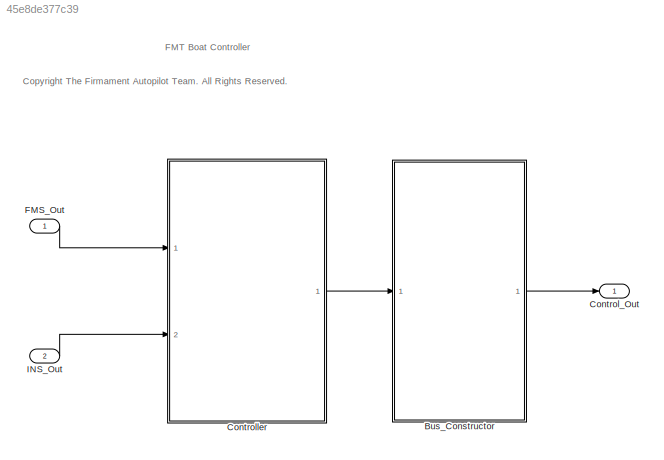
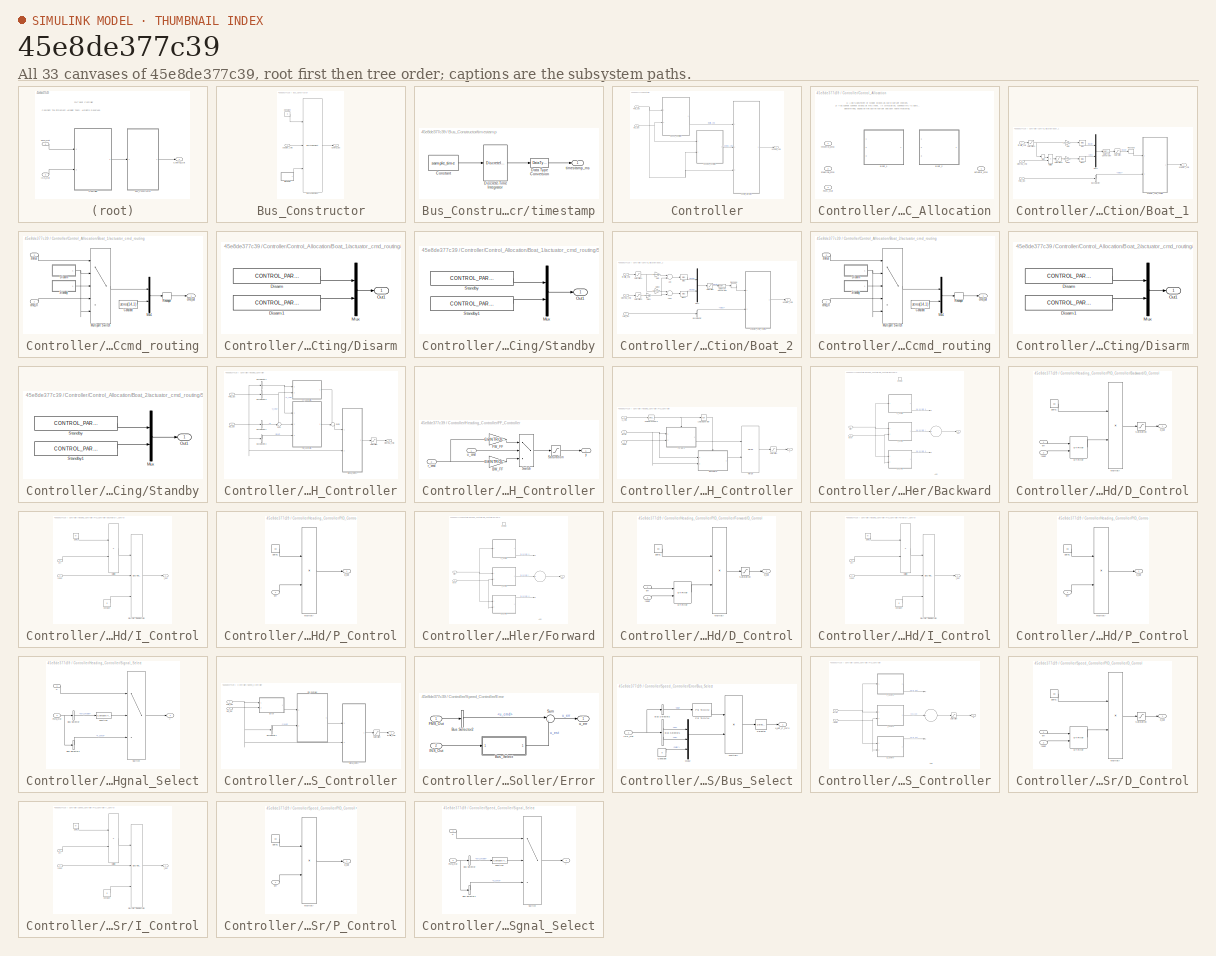
[diagram: thumbnail index - all 33 canvases of the model, root first then tree order]
MODEL slx_45e8de377c39
KIND model
CONFIG AbsTol = auto
CONFIG EnableMultiTasking = off
CONFIG FixedStep = control_dt
CONFIG MaxStep = auto
CONFIG MinStep = auto
CONFIG RelTol = 1e-3
CONFIG SampleTimeConstraint = Unconstrained
CONFIG Solver = FixedStepDiscrete
CONFIG SolverName = FixedStepDiscrete
CONFIG StartTime = 0.0
CONFIG StopTime = 10.0
BLOCK [SubSystem] Bus_Constructor
  Ports = [1, 1]
  RequestExecContextInheritance = off
BLOCK [BusAssignment] Bus_Constructor/Bus Assignment
  AssignedSignals = actuator_cmd,timestamp
  Ports = [3, 1]
BLOCK [Constant] Bus_Constructor/Constant
  OutDataTypeStr = Bus: Control_Out_Bus
  Value = 0
BLOCK [Outport] Bus_Constructor/Control_Out
  IconDisplay = Port number
BLOCK [Inport] Bus_Constructor/actuator_cmd
  IconDisplay = Port number
BLOCK [SubSystem] Bus_Constructor/timestamp
  Ports = [0, 1]
  RequestExecContextInheritance = off
BLOCK [Constant] Bus_Constructor/timestamp/Constant
  Value = sample_time
BLOCK [DataTypeConversion] Bus_Constructor/timestamp/Data Type Conversion
  OutDataTypeStr = uint32
  RndMeth = Floor
  SaturateOnIntegerOverflow = off
BLOCK [DiscreteIntegrator] Bus_Constructor/timestamp/Discrete-Time Integrator
  ICPrevOutput = DiscIntNeverNeededParam
  ICPrevScaledInput = DiscIntNeverNeededParam
  InitialConditionSetting = Auto
  IntegratorMethod = Accumulation: Forward Euler
  Ports = [1, 1]
  SampleTime = -1
BLOCK [Outport] Bus_Constructor/timestamp/timestamp_ms
  IconDisplay = Port number
BLOCK [Outport] Control_Out
  IconDisplay = Port number
  OutDataTypeStr = Bus: Control_Out_Bus
BLOCK [SubSystem] Controller
  Ports = [2, 1]
  RequestExecContextInheritance = off
BLOCK [SubSystem] Controller/Control_Allocation
  GeneratePreprocessorConditionals = on
  Ports = [3, 1]
  RequestExecContextInheritance = off
  Variant = on
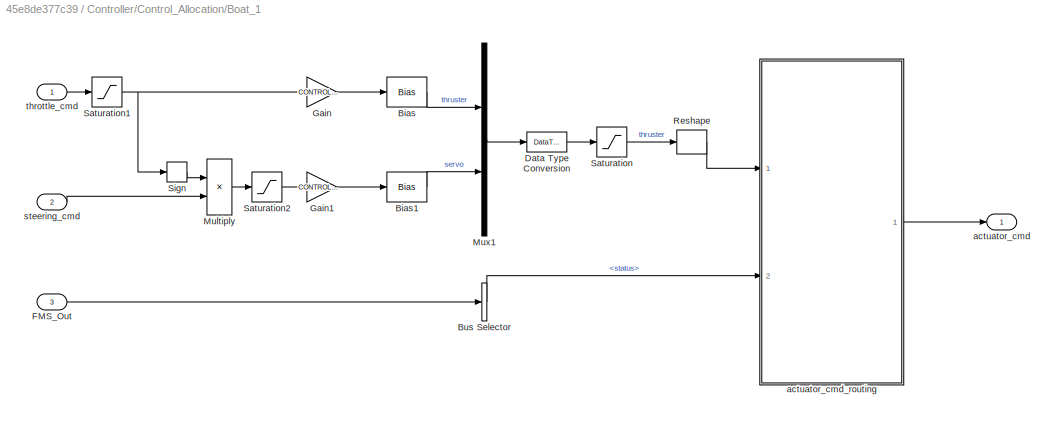
BLOCK [SubSystem] Controller/Control_Allocation/Boat_1
  Ports = [3, 1]
  RequestExecContextInheritance = off
  TreatAsAtomicUnit = on
  VariantControl = AIRFRAME==1
BLOCK [Bias] Controller/Control_Allocation/Boat_1/Bias
  Bias = CONTROL_PARAM.THROTTLE_BIAS
  SaturateOnIntegerOverflow = off
BLOCK [Bias] Controller/Control_Allocation/Boat_1/Bias1
  Bias = CONTROL_PARAM.SERVO_BIAS
  SaturateOnIntegerOverflow = off
BLOCK [BusSelector] Controller/Control_Allocation/Boat_1/Bus Selector
  OutputAsBus = off
  OutputSignals = status
  Ports = [1, 1]
BLOCK [DataTypeConversion] Controller/Control_Allocation/Boat_1/Data Type Conversion
  OutDataTypeStr = uint16
  RndMeth = Floor
  SaturateOnIntegerOverflow = off
BLOCK [Inport] Controller/Control_Allocation/Boat_1/FMS_Out
  IconDisplay = Port number
  Port = 3
BLOCK [Gain] Controller/Control_Allocation/Boat_1/Gain
  Gain = CONTROL_PARAM.THROTTLE_SCALE
  OutDataTypeStr = single
  ParamDataTypeStr = Inherit: Inherit via internal rule
  SaturateOnIntegerOverflow = off
BLOCK [Gain] Controller/Control_Allocation/Boat_1/Gain1
  Gain = CONTROL_PARAM.SERVO_SCALE
  OutDataTypeStr = single
  ParamDataTypeStr = Inherit: Inherit via internal rule
  SaturateOnIntegerOverflow = off
BLOCK [Product] Controller/Control_Allocation/Boat_1/Multiply
  InputSameDT = off
  OutDataTypeStr = Inherit: Inherit via internal rule
  Ports = [2, 1]
  RndMeth = Floor
  SaturateOnIntegerOverflow = off
BLOCK [Mux] Controller/Control_Allocation/Boat_1/Mux1
  DisplayOption = bar
  Inputs = 2
  Ports = [2, 1]
BLOCK [Reshape] Controller/Control_Allocation/Boat_1/Reshape
  OutputDimensionality = Column vector (2-D)
  Ports = [1, 1]
BLOCK [Saturate] Controller/Control_Allocation/Boat_1/Saturation
  InputPortMap = u0
  LowerLimit = 1000
  Ports = [1, 1]
  UpperLimit = 2000
BLOCK [Saturate] Controller/Control_Allocation/Boat_1/Saturation1
  InputPortMap = u0
  LowerLimit = CONTROL_PARAM.THROTTLE_MIN
  Ports = [1, 1]
  UpperLimit = CONTROL_PARAM.THROTTLE_MAX
BLOCK [Saturate] Controller/Control_Allocation/Boat_1/Saturation2
  InputPortMap = u0
  LowerLimit = CONTROL_PARAM.SERVO_MIN
  Ports = [1, 1]
  UpperLimit = CONTROL_PARAM.SERVO_MAX
BLOCK [Signum] Controller/Control_Allocation/Boat_1/Sign
BLOCK [Outport] Controller/Control_Allocation/Boat_1/actuator_cmd
  IconDisplay = Port number
BLOCK [SubSystem] Controller/Control_Allocation/Boat_1/actuator_cmd_routing
  Ports = [2, 1]
  RequestExecContextInheritance = off
BLOCK [Constant] Controller/Control_Allocation/Boat_1/actuator_cmd_routing/Constant
  OutDataTypeStr = uint16
  Value = zeros(14,1)
  VectorParams1D = off
BLOCK [SubSystem] Controller/Control_Allocation/Boat_1/actuator_cmd_routing/Disarm
  Ports = [0, 1]
  RequestExecContextInheritance = off
BLOCK [Constant] Controller/Control_Allocation/Boat_1/actuator_cmd_routing/Disarm/Disarm
  OutDataTypeStr = uint16
  Value = CONTROL_PARAM.THROTTLE_BIAS
  VectorParams1D = off
BLOCK [Constant] Controller/Control_Allocation/Boat_1/actuator_cmd_routing/Disarm/Disarm1
  OutDataTypeStr = uint16
  Value = CONTROL_PARAM.SERVO_BIAS
  VectorParams1D = off
BLOCK [Mux] Controller/Control_Allocation/Boat_1/actuator_cmd_routing/Disarm/Mux
  DisplayOption = bar
  Inputs = 2
  Ports = [2, 1]
BLOCK [Outport] Controller/Control_Allocation/Boat_1/actuator_cmd_routing/Disarm/Out1
  IconDisplay = Port number
BLOCK [MultiPortSwitch] Controller/Control_Allocation/Boat_1/actuator_cmd_routing/Multiport Switch
  DataPortForDefault = Additional data port
  DiagnosticForDefault = None
  InputSameDT = off
  Ports = [5, 1]
  SaturateOnIntegerOverflow = off
BLOCK [Mux] Controller/Control_Allocation/Boat_1/actuator_cmd_routing/Mux1
  DisplayOption = bar
  Inputs = 2
  Ports = [2, 1]
BLOCK [Reshape] Controller/Control_Allocation/Boat_1/actuator_cmd_routing/Reshape
  OutputDimensionality = Customize
  OutputDimensions = [16,1]
  Ports = [1, 1]
BLOCK [SubSystem] Controller/Control_Allocation/Boat_1/actuator_cmd_routing/Standby
  Ports = [0, 1]
  RequestExecContextInheritance = off
BLOCK [Mux] Controller/Control_Allocation/Boat_1/actuator_cmd_routing/Standby/Mux
  DisplayOption = bar
  Inputs = 2
  Ports = [2, 1]
BLOCK [Outport] Controller/Control_Allocation/Boat_1/actuator_cmd_routing/Standby/Out1
  IconDisplay = Port number
BLOCK [Constant] Controller/Control_Allocation/Boat_1/actuator_cmd_routing/Standby/Standby
  OutDataTypeStr = uint16
  Value = CONTROL_PARAM.THROTTLE_BIAS
  VectorParams1D = off
BLOCK [Constant] Controller/Control_Allocation/Boat_1/actuator_cmd_routing/Standby/Standby1
  OutDataTypeStr = uint16
  Value = CONTROL_PARAM.SERVO_BIAS
  VectorParams1D = off
BLOCK [Inport] Controller/Control_Allocation/Boat_1/actuator_cmd_routing/cmd_in
  IconDisplay = Port number
BLOCK [Outport] Controller/Control_Allocation/Boat_1/actuator_cmd_routing/cmd_out
  IconDisplay = Port number
BLOCK [Inport] Controller/Control_Allocation/Boat_1/actuator_cmd_routing/status
  IconDisplay = Port number
  Port = 2
BLOCK [Inport] Controller/Control_Allocation/Boat_1/steering_cmd
  IconDisplay = Port number
  Port = 2
BLOCK [Inport] Controller/Control_Allocation/Boat_1/throttle_cmd
  IconDisplay = Port number
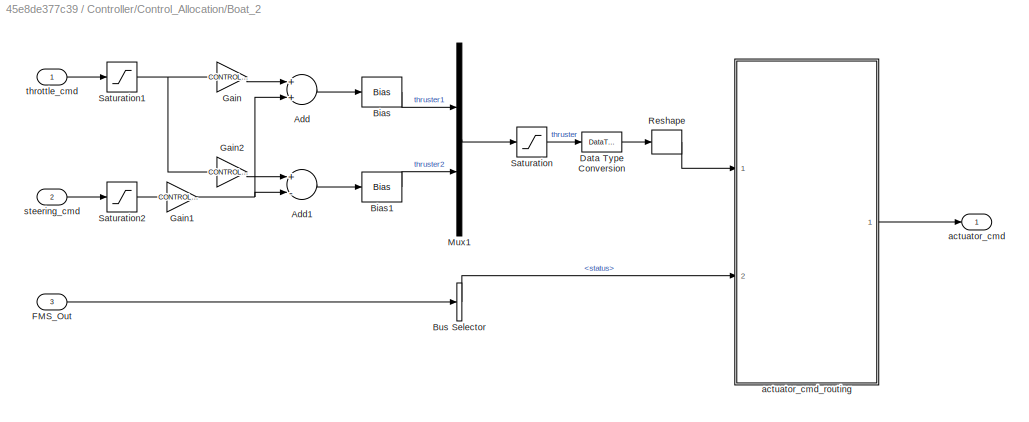
BLOCK [SubSystem] Controller/Control_Allocation/Boat_2
  Ports = [3, 1]
  RequestExecContextInheritance = off
  TreatAsAtomicUnit = on
  VariantControl = AIRFRAME==2
BLOCK [Sum] Controller/Control_Allocation/Boat_2/Add
  InputSameDT = off
  OutDataTypeStr = Inherit: Inherit via internal rule
  Ports = [2, 1]
  SaturateOnIntegerOverflow = off
BLOCK [Sum] Controller/Control_Allocation/Boat_2/Add1
  InputSameDT = off
  Inputs = +-
  OutDataTypeStr = Inherit: Inherit via internal rule
  Ports = [2, 1]
  SaturateOnIntegerOverflow = off
BLOCK [Bias] Controller/Control_Allocation/Boat_2/Bias
  Bias = CONTROL_PARAM.THROTTLE_BIAS
  SaturateOnIntegerOverflow = off
BLOCK [Bias] Controller/Control_Allocation/Boat_2/Bias1
  Bias = CONTROL_PARAM.THROTTLE2_BIAS
  SaturateOnIntegerOverflow = off
BLOCK [BusSelector] Controller/Control_Allocation/Boat_2/Bus Selector
  OutputAsBus = off
  OutputSignals = status
  Ports = [1, 1]
BLOCK [DataTypeConversion] Controller/Control_Allocation/Boat_2/Data Type Conversion
  OutDataTypeStr = uint16
  RndMeth = Floor
  SaturateOnIntegerOverflow = off
BLOCK [Inport] Controller/Control_Allocation/Boat_2/FMS_Out
  IconDisplay = Port number
  Port = 3
BLOCK [Gain] Controller/Control_Allocation/Boat_2/Gain
  Gain = CONTROL_PARAM.THROTTLE_SCALE
  OutDataTypeStr = single
  ParamDataTypeStr = Inherit: Inherit via internal rule
  SaturateOnIntegerOverflow = off
BLOCK [Gain] Controller/Control_Allocation/Boat_2/Gain1
  Gain = CONTROL_PARAM.SERVO_SCALE
  OutDataTypeStr = single
  ParamDataTypeStr = Inherit: Inherit via internal rule
  SaturateOnIntegerOverflow = off
BLOCK [Gain] Controller/Control_Allocation/Boat_2/Gain2
  Gain = CONTROL_PARAM.THROTTLE2_SCALE
  OutDataTypeStr = single
  ParamDataTypeStr = Inherit: Inherit via internal rule
  SaturateOnIntegerOverflow = off
BLOCK [Mux] Controller/Control_Allocation/Boat_2/Mux1
  DisplayOption = bar
  Inputs = 2
  Ports = [2, 1]
BLOCK [Reshape] Controller/Control_Allocation/Boat_2/Reshape
  OutputDimensionality = Column vector (2-D)
  Ports = [1, 1]
BLOCK [Saturate] Controller/Control_Allocation/Boat_2/Saturation
  InputPortMap = u0
  LowerLimit = 1000
  Ports = [1, 1]
  UpperLimit = 2000
BLOCK [Saturate] Controller/Control_Allocation/Boat_2/Saturation1
  InputPortMap = u0
  LowerLimit = CONTROL_PARAM.THROTTLE_MIN
  Ports = [1, 1]
  UpperLimit = CONTROL_PARAM.THROTTLE_MAX
BLOCK [Saturate] Controller/Control_Allocation/Boat_2/Saturation2
  InputPortMap = u0
  LowerLimit = CONTROL_PARAM.SERVO_MIN
  Ports = [1, 1]
  UpperLimit = CONTROL_PARAM.SERVO_MAX
BLOCK [Outport] Controller/Control_Allocation/Boat_2/actuator_cmd
  IconDisplay = Port number
BLOCK [SubSystem] Controller/Control_Allocation/Boat_2/actuator_cmd_routing
  Ports = [2, 1]
  RequestExecContextInheritance = off
BLOCK [Constant] Controller/Control_Allocation/Boat_2/actuator_cmd_routing/Constant
  OutDataTypeStr = uint16
  Value = zeros(14,1)
  VectorParams1D = off
BLOCK [SubSystem] Controller/Control_Allocation/Boat_2/actuator_cmd_routing/Disarm
  Ports = [0, 1]
  RequestExecContextInheritance = off
BLOCK [Constant] Controller/Control_Allocation/Boat_2/actuator_cmd_routing/Disarm/Disarm
  OutDataTypeStr = uint16
  Value = CONTROL_PARAM.THROTTLE_BIAS
  VectorParams1D = off
BLOCK [Constant] Controller/Control_Allocation/Boat_2/actuator_cmd_routing/Disarm/Disarm1
  OutDataTypeStr = uint16
  Value = CONTROL_PARAM.THROTTLE2_BIAS
  VectorParams1D = off
BLOCK [Mux] Controller/Control_Allocation/Boat_2/actuator_cmd_routing/Disarm/Mux
  DisplayOption = bar
  Inputs = 2
  Ports = [2, 1]
BLOCK [Outport] Controller/Control_Allocation/Boat_2/actuator_cmd_routing/Disarm/Out1
  IconDisplay = Port number
BLOCK [MultiPortSwitch] Controller/Control_Allocation/Boat_2/actuator_cmd_routing/Multiport Switch
  DataPortForDefault = Additional data port
  DiagnosticForDefault = None
  InputSameDT = off
  Ports = [5, 1]
  SaturateOnIntegerOverflow = off
BLOCK [Mux] Controller/Control_Allocation/Boat_2/actuator_cmd_routing/Mux1
  DisplayOption = bar
  Inputs = 2
  Ports = [2, 1]
BLOCK [Reshape] Controller/Control_Allocation/Boat_2/actuator_cmd_routing/Reshape
  OutputDimensionality = Customize
  OutputDimensions = [16,1]
  Ports = [1, 1]
BLOCK [SubSystem] Controller/Control_Allocation/Boat_2/actuator_cmd_routing/Standby
  Ports = [0, 1]
  RequestExecContextInheritance = off
BLOCK [Mux] Controller/Control_Allocation/Boat_2/actuator_cmd_routing/Standby/Mux
  DisplayOption = bar
  Inputs = 2
  Ports = [2, 1]
BLOCK [Outport] Controller/Control_Allocation/Boat_2/actuator_cmd_routing/Standby/Out1
  IconDisplay = Port number
BLOCK [Constant] Controller/Control_Allocation/Boat_2/actuator_cmd_routing/Standby/Standby
  OutDataTypeStr = uint16
  Value = CONTROL_PARAM.THROTTLE_BIAS
  VectorParams1D = off
BLOCK [Constant] Controller/Control_Allocation/Boat_2/actuator_cmd_routing/Standby/Standby1
  OutDataTypeStr = uint16
  Value = CONTROL_PARAM.THROTTLE2_BIAS
  VectorParams1D = off
BLOCK [Inport] Controller/Control_Allocation/Boat_2/actuator_cmd_routing/cmd_in
  IconDisplay = Port number
BLOCK [Outport] Controller/Control_Allocation/Boat_2/actuator_cmd_routing/cmd_out
  IconDisplay = Port number
BLOCK [Inport] Controller/Control_Allocation/Boat_2/actuator_cmd_routing/status
  IconDisplay = Port number
  Port = 2
BLOCK [Inport] Controller/Control_Allocation/Boat_2/steering_cmd
  IconDisplay = Port number
  Port = 2
BLOCK [Inport] Controller/Control_Allocation/Boat_2/throttle_cmd
  IconDisplay = Port number
BLOCK [Inport] Controller/Control_Allocation/FMS_Out
  IconDisplay = Port number
  Port = 3
BLOCK [Outport] Controller/Control_Allocation/actuator_cmd
  IconDisplay = Port number
BLOCK [Inport] Controller/Control_Allocation/steering_cmd
  IconDisplay = Port number
  Port = 2
BLOCK [Inport] Controller/Control_Allocation/throttle_cmd
  IconDisplay = Port number
BLOCK [Inport] Controller/FMS_Out
  IconDisplay = Port number
BLOCK [SubSystem] Controller/Heading_Controller
  Ports = [2, 1]
  RequestExecContextInheritance = off
BLOCK [BusSelector] Controller/Heading_Controller/Bus Selector1
  OutputAsBus = off
  OutputSignals = r
  Ports = [1, 1]
BLOCK [BusSelector] Controller/Heading_Controller/Bus Selector2
  OutputAsBus = off
  OutputSignals = reset
  Ports = [1, 1]
BLOCK [BusSelector] Controller/Heading_Controller/Bus Selector3
  OutputAsBus = off
  OutputSignals = r_cmd
  Ports = [1, 1]
BLOCK [BusSelector] Controller/Heading_Controller/Bus Selector4
  OutputAsBus = off
  OutputSignals = u_cmd
  Ports = [1, 1]
BLOCK [SubSystem] Controller/Heading_Controller/FF_Controller
  Ports = [2, 1]
  RequestExecContextInheritance = off
BLOCK [Gain] Controller/Heading_Controller/FF_Controller/BW_FF
  Gain = CONTROL_PARAM.BW_PSI_RATE_FF
  OutDataTypeStr = Inherit: Inherit via internal rule
  ParamDataTypeStr = Inherit: Inherit via internal rule
  SaturateOnIntegerOverflow = off
BLOCK [Gain] Controller/Heading_Controller/FF_Controller/FW_FF
  Gain = CONTROL_PARAM.FW_PSI_RATE_FF
  OutDataTypeStr = Inherit: Inherit via internal rule
  ParamDataTypeStr = Inherit: Inherit via internal rule
  SaturateOnIntegerOverflow = off
BLOCK [Saturate] Controller/Heading_Controller/FF_Controller/Saturation
  InputPortMap = u0
  LowerLimit = -1
  Ports = [1, 1]
  UpperLimit = 1
BLOCK [Switch] Controller/Heading_Controller/FF_Controller/Switch
  InputSameDT = off
  SaturateOnIntegerOverflow = off
BLOCK [Inport] Controller/Heading_Controller/FF_Controller/r_cmd
  IconDisplay = Port number
  Port = 2
BLOCK [Inport] Controller/Heading_Controller/FF_Controller/u_cmd
  IconDisplay = Port number
BLOCK [Outport] Controller/Heading_Controller/FF_Controller/y
  IconDisplay = Port number
BLOCK [Inport] Controller/Heading_Controller/FMS_Out
  IconDisplay = Port number
  Port = 2
BLOCK [Inport] Controller/Heading_Controller/INS_Out
  IconDisplay = Port number
BLOCK [SubSystem] Controller/Heading_Controller/PID_Controller
  Ports = [3, 1]
  RequestExecContextInheritance = off
BLOCK [SubSystem] Controller/Heading_Controller/PID_Controller/Backward
  Ports = [2, 1, 1]
  RequestExecContextInheritance = off
BLOCK [Sum] Controller/Heading_Controller/PID_Controller/Backward/Add
  AccumDataTypeStr = Inherit: Same as first input
  InputSameDT = off
  Inputs = +++
  OutDataTypeStr = Inherit: Inherit via internal rule
  Ports = [3, 1]
  SaturateOnIntegerOverflow = off
BLOCK [SubSystem] Controller/Heading_Controller/PID_Controller/Backward/D_Control
  Ports = [2, 1]
  RequestExecContextInheritance = off
BLOCK [Reference] Controller/Heading_Controller/PID_Controller/Backward/D_Control/DT Filter  REF=FMT_Model_Lib/Filter/DT Filter
  Ports = [2, 1]
  SourceBlock = FMT_Model_Lib/Filter/DT Filter
  SourceProductName = FMT Toolbox
  SourceType = Derivative Tracking Filter
BLOCK [Product] Controller/Heading_Controller/PID_Controller/Backward/D_Control/Multiply
  InputSameDT = off
  Ports = [2, 1]
  RndMeth = Floor
  SaturateOnIntegerOverflow = off
BLOCK [Saturate] Controller/Heading_Controller/PID_Controller/Backward/D_Control/Saturation
  InputPortMap = u0
  LowerLimit = min_d
  Ports = [1, 1]
  UpperLimit = max_d
BLOCK [Outport] Controller/Heading_Controller/PID_Controller/Backward/D_Control/d_out
  IconDisplay = Port number
BLOCK [Inport] Controller/Heading_Controller/PID_Controller/Backward/D_Control/err
  IconDisplay = Port number
BLOCK [Constant] Controller/Heading_Controller/PID_Controller/Backward/D_Control/gain1
  OutDataTypeStr = single
  Value = kd
BLOCK [Inport] Controller/Heading_Controller/PID_Controller/Backward/D_Control/reset
  IconDisplay = Port number
  Port = 2
BLOCK [EnablePort] Controller/Heading_Controller/PID_Controller/Backward/Enable
  Ports = []
  StatesWhenEnabling = reset
BLOCK [SubSystem] Controller/Heading_Controller/PID_Controller/Backward/I_Control
  Ports = [2, 1]
  RequestExecContextInheritance = off
BLOCK [Constant] Controller/Heading_Controller/PID_Controller/Backward/I_Control/Constant
  OutDataTypeStr = single
  Value = 0
BLOCK [DiscreteIntegrator] Controller/Heading_Controller/PID_Controller/Backward/I_Control/Discrete-Time Integrator
  ExternalReset = level
  ICPrevOutput = DiscIntNeverNeededParam
  ICPrevScaledInput = DiscIntNeverNeededParam
  InitialConditionSetting = Auto
  InitialConditionSource = external
  LimitOutput = on
  LowerSaturationLimit = min_i
  Ports = [3, 1]
  SampleTime = -1
  UpperSaturationLimit = max_i
BLOCK [Product] Controller/Heading_Controller/PID_Controller/Backward/I_Control/Multiply
  InputSameDT = off
  Ports = [2, 1]
  RndMeth = Floor
  SaturateOnIntegerOverflow = off
BLOCK [Inport] Controller/Heading_Controller/PID_Controller/Backward/I_Control/err
  IconDisplay = Port number
BLOCK [Constant] Controller/Heading_Controller/PID_Controller/Backward/I_Control/gain1
  OutDataTypeStr = single
  Value = ki
BLOCK [Outport] Controller/Heading_Controller/PID_Controller/Backward/I_Control/i_out
  IconDisplay = Port number
BLOCK [Inport] Controller/Heading_Controller/PID_Controller/Backward/I_Control/reset
  IconDisplay = Port number
  Port = 2
BLOCK [SubSystem] Controller/Heading_Controller/PID_Controller/Backward/P_Control
  Ports = [1, 1]
  RequestExecContextInheritance = off
BLOCK [Product] Controller/Heading_Controller/PID_Controller/Backward/P_Control/Multiply
  InputSameDT = off
  Ports = [2, 1]
  RndMeth = Floor
  SaturateOnIntegerOverflow = off
BLOCK [Inport] Controller/Heading_Controller/PID_Controller/Backward/P_Control/err
  IconDisplay = Port number
BLOCK [Constant] Controller/Heading_Controller/PID_Controller/Backward/P_Control/gain1
  OutDataTypeStr = single
  Value = kp
BLOCK [Outport] Controller/Heading_Controller/PID_Controller/Backward/P_Control/p_out
  IconDisplay = Port number
BLOCK [Inport] Controller/Heading_Controller/PID_Controller/Backward/error
  IconDisplay = Port number
BLOCK [Outport] Controller/Heading_Controller/PID_Controller/Backward/out
  IconDisplay = Port number
BLOCK [Inport] Controller/Heading_Controller/PID_Controller/Backward/reset
  IconDisplay = Port number
  Port = 2
BLOCK [Reference] Controller/Heading_Controller/PID_Controller/Compare To Zero  REF=simulink/Logic and Bit
Operations/Compare
To Zero
  Ports = [1, 1]
  SourceBlock = simulink/Logic and Bit\nOperations/Compare\nTo Zero
  SourceProductBaseCode = SL
  SourceProductName = Simulink
  SourceType = Compare To Zero
BLOCK [SubSystem] Controller/Heading_Controller/PID_Controller/Forward
  Ports = [2, 1, 1]
  RequestExecContextInheritance = off
BLOCK [Sum] Controller/Heading_Controller/PID_Controller/Forward/Add
  AccumDataTypeStr = Inherit: Same as first input
  InputSameDT = off
  Inputs = +++
  OutDataTypeStr = Inherit: Inherit via internal rule
  Ports = [3, 1]
  SaturateOnIntegerOverflow = off
BLOCK [SubSystem] Controller/Heading_Controller/PID_Controller/Forward/D_Control
  Ports = [2, 1]
  RequestExecContextInheritance = off
BLOCK [Reference] Controller/Heading_Controller/PID_Controller/Forward/D_Control/DT Filter  REF=FMT_Model_Lib/Filter/DT Filter
  Ports = [2, 1]
  SourceBlock = FMT_Model_Lib/Filter/DT Filter
  SourceProductName = FMT Toolbox
  SourceType = Derivative Tracking Filter
BLOCK [Product] Controller/Heading_Controller/PID_Controller/Forward/D_Control/Multiply
  InputSameDT = off
  Ports = [2, 1]
  RndMeth = Floor
  SaturateOnIntegerOverflow = off
BLOCK [Saturate] Controller/Heading_Controller/PID_Controller/Forward/D_Control/Saturation
  InputPortMap = u0
  LowerLimit = min_d
  Ports = [1, 1]
  UpperLimit = max_d
BLOCK [Outport] Controller/Heading_Controller/PID_Controller/Forward/D_Control/d_out
  IconDisplay = Port number
BLOCK [Inport] Controller/Heading_Controller/PID_Controller/Forward/D_Control/err
  IconDisplay = Port number
BLOCK [Constant] Controller/Heading_Controller/PID_Controller/Forward/D_Control/gain1
  OutDataTypeStr = single
  Value = kd
BLOCK [Inport] Controller/Heading_Controller/PID_Controller/Forward/D_Control/reset
  IconDisplay = Port number
  Port = 2
BLOCK [EnablePort] Controller/Heading_Controller/PID_Controller/Forward/Enable
  Ports = []
  StatesWhenEnabling = reset
BLOCK [SubSystem] Controller/Heading_Controller/PID_Controller/Forward/I_Control
  Ports = [2, 1]
  RequestExecContextInheritance = off
BLOCK [Constant] Controller/Heading_Controller/PID_Controller/Forward/I_Control/Constant
  OutDataTypeStr = single
  Value = 0
BLOCK [DiscreteIntegrator] Controller/Heading_Controller/PID_Controller/Forward/I_Control/Discrete-Time Integrator
  ExternalReset = level
  ICPrevOutput = DiscIntNeverNeededParam
  ICPrevScaledInput = DiscIntNeverNeededParam
  InitialConditionSetting = Auto
  InitialConditionSource = external
  LimitOutput = on
  LowerSaturationLimit = min_i
  Ports = [3, 1]
  SampleTime = -1
  UpperSaturationLimit = max_i
BLOCK [Product] Controller/Heading_Controller/PID_Controller/Forward/I_Control/Multiply
  InputSameDT = off
  Ports = [2, 1]
  RndMeth = Floor
  SaturateOnIntegerOverflow = off
BLOCK [Inport] Controller/Heading_Controller/PID_Controller/Forward/I_Control/err
  IconDisplay = Port number
BLOCK [Constant] Controller/Heading_Controller/PID_Controller/Forward/I_Control/gain1
  OutDataTypeStr = single
  Value = ki
BLOCK [Outport] Controller/Heading_Controller/PID_Controller/Forward/I_Control/i_out
  IconDisplay = Port number
BLOCK [Inport] Controller/Heading_Controller/PID_Controller/Forward/I_Control/reset
  IconDisplay = Port number
  Port = 2
BLOCK [SubSystem] Controller/Heading_Controller/PID_Controller/Forward/P_Control
  Ports = [1, 1]
  RequestExecContextInheritance = off
BLOCK [Product] Controller/Heading_Controller/PID_Controller/Forward/P_Control/Multiply
  InputSameDT = off
  Ports = [2, 1]
  RndMeth = Floor
  SaturateOnIntegerOverflow = off
BLOCK [Inport] Controller/Heading_Controller/PID_Controller/Forward/P_Control/err
  IconDisplay = Port number
BLOCK [Constant] Controller/Heading_Controller/PID_Controller/Forward/P_Control/gain1
  OutDataTypeStr = single
  Value = kp
BLOCK [Outport] Controller/Heading_Controller/PID_Controller/Forward/P_Control/p_out
  IconDisplay = Port number
BLOCK [Inport] Controller/Heading_Controller/PID_Controller/Forward/error
  IconDisplay = Port number
BLOCK [Outport] Controller/Heading_Controller/PID_Controller/Forward/out
  IconDisplay = Port number
BLOCK [Inport] Controller/Heading_Controller/PID_Controller/Forward/reset
  IconDisplay = Port number
  Port = 2
BLOCK [Logic] Controller/Heading_Controller/PID_Controller/Logical Operator
  AllPortsSameDT = off
  Operator = NOT
  OutDataTypeStr = boolean
  Ports = [1, 1]
BLOCK [Merge] Controller/Heading_Controller/PID_Controller/Merge
  Ports = [2, 1]
BLOCK [Saturate] Controller/Heading_Controller/PID_Controller/Saturation
  InputPortMap = u0
  LowerLimit = -1
  Ports = [1, 1]
  UpperLimit = 1
BLOCK [Inport] Controller/Heading_Controller/PID_Controller/error
  IconDisplay = Port number
  Port = 2
BLOCK [Inport] Controller/Heading_Controller/PID_Controller/reset
  IconDisplay = Port number
  Port = 3
BLOCK [Inport] Controller/Heading_Controller/PID_Controller/u_cmd
  IconDisplay = Port number
BLOCK [Outport] Controller/Heading_Controller/PID_Controller/y
  IconDisplay = Port number
BLOCK [Saturate] Controller/Heading_Controller/Saturation
  InputPortMap = u0
  LowerLimit = -1
  Ports = [1, 1]
  UpperLimit = 1
BLOCK [SubSystem] Controller/Heading_Controller/Signal_Select
  Ports = [2, 1]
  RequestExecContextInheritance = off
BLOCK [BusSelector] Controller/Heading_Controller/Signal_Select/Bus Selector
  OutputAsBus = off
  OutputSignals = ctrl_mode
  Ports = [1, 1]
BLOCK [BusSelector] Controller/Heading_Controller/Signal_Select/Bus Selector1
  OutputAsBus = off
  OutputSignals = r_cmd
  Ports = [1, 1]
BLOCK [Inport] Controller/Heading_Controller/Signal_Select/FMS_Out
  IconDisplay = Port number
  Port = 2
BLOCK [Reference] Controller/Heading_Controller/Signal_Select/Position  REF=simulink/Logic and Bit
Operations/Compare
To Constant
  Ports = [1, 1]
  SourceBlock = simulink/Logic and Bit\nOperations/Compare\nTo Constant
  SourceProductBaseCode = SL
  SourceProductName = Simulink
  SourceType = Compare To Constant
BLOCK [Switch] Controller/Heading_Controller/Signal_Select/Switch
  Criteria = u2 > Threshold
  InputSameDT = off
  SaturateOnIntegerOverflow = off
BLOCK [Inport] Controller/Heading_Controller/Signal_Select/u
  IconDisplay = Port number
BLOCK [Outport] Controller/Heading_Controller/Signal_Select/y
  IconDisplay = Port number
BLOCK [Sum] Controller/Heading_Controller/Sum
  IconShape = round
  InputSameDT = off
  Inputs = +-|
  OutDataTypeStr = Inherit: Inherit via internal rule
  Ports = [2, 1]
  SaturateOnIntegerOverflow = off
BLOCK [Sum] Controller/Heading_Controller/Sum1
  IconShape = round
  InputSameDT = off
  Inputs = ++|
  OutDataTypeStr = Inherit: Inherit via internal rule
  Ports = [2, 1]
  SaturateOnIntegerOverflow = off
BLOCK [Outport] Controller/Heading_Controller/steering_cmd
  IconDisplay = Port number
BLOCK [Inport] Controller/INS_Out
  IconDisplay = Port number
  Port = 2
BLOCK [SubSystem] Controller/Speed_Controller
  Ports = [2, 1]
  RequestExecContextInheritance = off
BLOCK [BusSelector] Controller/Speed_Controller/Bus Selector1
  OutputAsBus = off
  OutputSignals = reset
  Ports = [1, 1]
BLOCK [SubSystem] Controller/Speed_Controller/Error
  Ports = [2, 1]
  RequestExecContextInheritance = off
BLOCK [BusSelector] Controller/Speed_Controller/Error/Bus Selector2
  OutputAsBus = off
  OutputSignals = u_cmd
  Ports = [1, 1]
BLOCK [SubSystem] Controller/Speed_Controller/Error/Bus_Select
  Ports = [1, 1]
  RequestExecContextInheritance = off
BLOCK [BusSelector] Controller/Speed_Controller/Error/Bus_Select/Bus Selector1
  OutputAsBus = off
  OutputSignals = vn,ve
  Ports = [1, 2]
BLOCK [BusSelector] Controller/Speed_Controller/Error/Bus_Select/Bus Selector2
  OutputAsBus = off
  OutputSignals = psi
  Ports = [1, 1]
BLOCK [Constant] Controller/Speed_Controller/Error/Bus_Select/Constant
  OutDataTypeStr = single
  Value = 0
BLOCK [Inport] Controller/Speed_Controller/Error/Bus_Select/INS_Out
  IconDisplay = Port number
BLOCK [Product] Controller/Speed_Controller/Error/Bus_Select/Multiply
  InputSameDT = off
  Multiplication = Matrix(*)
  OutDataTypeStr = Inherit: Inherit via internal rule
  Ports = [2, 1]
  RndMeth = Floor
  SaturateOnIntegerOverflow = off
BLOCK [Mux] Controller/Speed_Controller/Error/Bus_Select/Mux2
  DisplayOption = bar
  Inputs = 3
  Ports = [3, 1]
BLOCK [Reference] Controller/Speed_Controller/Error/Bus_Select/Psi To DCM  REF=FMT_Model_Lib/Transformation/Psi To DCM
  Ports = [1, 1]
  SourceBlock = FMT_Model_Lib/Transformation/Psi To DCM
  SourceProductName = FMT Toolbox
  SourceType = Rotation Matrix X-Axis
BLOCK [Selector] Controller/Speed_Controller/Error/Bus_Select/Selector
  IndexOptions = Index vector (dialog)
  Indices = 1
  InputPortWidth = 3
  OutputSizes = 1
  Ports = [1, 1]
BLOCK [Outport] Controller/Speed_Controller/Error/Bus_Select/u_est_C_mPs
  IconDisplay = Port number
BLOCK [Inport] Controller/Speed_Controller/Error/FMS_Out
  IconDisplay = Port number
BLOCK [Inport] Controller/Speed_Controller/Error/INS_Out
  IconDisplay = Port number
  Port = 2
BLOCK [Sum] Controller/Speed_Controller/Error/Sum
  IconShape = round
  InputSameDT = off
  Inputs = |+-
  OutDataTypeStr = Inherit: Inherit via internal rule
  Ports = [2, 1]
  SaturateOnIntegerOverflow = off
BLOCK [Outport] Controller/Speed_Controller/Error/u_err
  IconDisplay = Port number
BLOCK [Inport] Controller/Speed_Controller/FMS_Out
  IconDisplay = Port number
BLOCK [Inport] Controller/Speed_Controller/INS_Out
  IconDisplay = Port number
  Port = 2
BLOCK [SubSystem] Controller/Speed_Controller/PID_Controller
  Ports = [2, 1]
  RequestExecContextInheritance = off
BLOCK [Sum] Controller/Speed_Controller/PID_Controller/Add
  AccumDataTypeStr = Inherit: Same as first input
  InputSameDT = off
  Inputs = +++
  OutDataTypeStr = Inherit: Inherit via internal rule
  Ports = [3, 1]
  SaturateOnIntegerOverflow = off
BLOCK [SubSystem] Controller/Speed_Controller/PID_Controller/D_Control
  Ports = [2, 1]
  RequestExecContextInheritance = off
BLOCK [Reference] Controller/Speed_Controller/PID_Controller/D_Control/DT Filter  REF=FMT_Model_Lib/Filter/DT Filter
  Ports = [2, 1]
  SourceBlock = FMT_Model_Lib/Filter/DT Filter
  SourceProductName = FMT Toolbox
  SourceType = Derivative Tracking Filter
BLOCK [Product] Controller/Speed_Controller/PID_Controller/D_Control/Multiply
  InputSameDT = off
  Ports = [2, 1]
  RndMeth = Floor
  SaturateOnIntegerOverflow = off
BLOCK [Saturate] Controller/Speed_Controller/PID_Controller/D_Control/Saturation
  InputPortMap = u0
  LowerLimit = min_d
  Ports = [1, 1]
  UpperLimit = max_d
BLOCK [Outport] Controller/Speed_Controller/PID_Controller/D_Control/d_out
  IconDisplay = Port number
BLOCK [Inport] Controller/Speed_Controller/PID_Controller/D_Control/err
  IconDisplay = Port number
BLOCK [Constant] Controller/Speed_Controller/PID_Controller/D_Control/gain1
  OutDataTypeStr = single
  Value = kd
BLOCK [Inport] Controller/Speed_Controller/PID_Controller/D_Control/reset
  IconDisplay = Port number
  Port = 2
BLOCK [SubSystem] Controller/Speed_Controller/PID_Controller/I_Control
  Ports = [2, 1]
  RequestExecContextInheritance = off
BLOCK [Constant] Controller/Speed_Controller/PID_Controller/I_Control/Constant
  OutDataTypeStr = single
  Value = 0
BLOCK [DiscreteIntegrator] Controller/Speed_Controller/PID_Controller/I_Control/Discrete-Time Integrator
  ExternalReset = level
  ICPrevOutput = DiscIntNeverNeededParam
  ICPrevScaledInput = DiscIntNeverNeededParam
  InitialConditionSetting = Auto
  InitialConditionSource = external
  LimitOutput = on
  LowerSaturationLimit = min_i
  Ports = [3, 1]
  SampleTime = -1
  UpperSaturationLimit = max_i
BLOCK [Product] Controller/Speed_Controller/PID_Controller/I_Control/Multiply
  InputSameDT = off
  Ports = [2, 1]
  RndMeth = Floor
  SaturateOnIntegerOverflow = off
BLOCK [Inport] Controller/Speed_Controller/PID_Controller/I_Control/err
  IconDisplay = Port number
BLOCK [Constant] Controller/Speed_Controller/PID_Controller/I_Control/gain1
  OutDataTypeStr = single
  Value = ki
BLOCK [Outport] Controller/Speed_Controller/PID_Controller/I_Control/i_out
  IconDisplay = Port number
BLOCK [Inport] Controller/Speed_Controller/PID_Controller/I_Control/reset
  IconDisplay = Port number
  Port = 2
BLOCK [SubSystem] Controller/Speed_Controller/PID_Controller/P_Control
  Ports = [1, 1]
  RequestExecContextInheritance = off
BLOCK [Product] Controller/Speed_Controller/PID_Controller/P_Control/Multiply
  InputSameDT = off
  Ports = [2, 1]
  RndMeth = Floor
  SaturateOnIntegerOverflow = off
BLOCK [Inport] Controller/Speed_Controller/PID_Controller/P_Control/err
  IconDisplay = Port number
BLOCK [Constant] Controller/Speed_Controller/PID_Controller/P_Control/gain1
  OutDataTypeStr = single
  Value = kp
BLOCK [Outport] Controller/Speed_Controller/PID_Controller/P_Control/p_out
  IconDisplay = Port number
BLOCK [Saturate] Controller/Speed_Controller/PID_Controller/Saturation
  InputPortMap = u0
  LowerLimit = -1
  Ports = [1, 1]
  UpperLimit = 1
BLOCK [Inport] Controller/Speed_Controller/PID_Controller/error
  IconDisplay = Port number
BLOCK [Inport] Controller/Speed_Controller/PID_Controller/reset
  IconDisplay = Port number
  Port = 2
BLOCK [Outport] Controller/Speed_Controller/PID_Controller/u
  IconDisplay = Port number
BLOCK [Saturate] Controller/Speed_Controller/Saturation
  InputPortMap = u0
  LowerLimit = -1
  Ports = [1, 1]
  UpperLimit = 1
BLOCK [SubSystem] Controller/Speed_Controller/Signal_Select
  Ports = [2, 1]
  RequestExecContextInheritance = off
BLOCK [BusSelector] Controller/Speed_Controller/Signal_Select/Bus Selector
  OutputAsBus = off
  OutputSignals = ctrl_mode
  Ports = [1, 1]
BLOCK [BusSelector] Controller/Speed_Controller/Signal_Select/Bus Selector1
  OutputAsBus = off
  OutputSignals = u_cmd
  Ports = [1, 1]
BLOCK [Inport] Controller/Speed_Controller/Signal_Select/FMS_Out
  IconDisplay = Port number
  Port = 2
BLOCK [Reference] Controller/Speed_Controller/Signal_Select/Position  REF=simulink/Logic and Bit
Operations/Compare
To Constant
  Ports = [1, 1]
  SourceBlock = simulink/Logic and Bit\nOperations/Compare\nTo Constant
  SourceProductBaseCode = SL
  SourceProductName = Simulink
  SourceType = Compare To Constant
BLOCK [Switch] Controller/Speed_Controller/Signal_Select/Switch
  Criteria = u2 > Threshold
  InputSameDT = off
  SaturateOnIntegerOverflow = off
BLOCK [Inport] Controller/Speed_Controller/Signal_Select/u
  IconDisplay = Port number
BLOCK [Outport] Controller/Speed_Controller/Signal_Select/y
  IconDisplay = Port number
BLOCK [Outport] Controller/Speed_Controller/throttle_cmd
  IconDisplay = Port number
BLOCK [Outport] Controller/actuator_cmd
  IconDisplay = Port number
BLOCK [Inport] FMS_Out
  IconDisplay = Port number
  OutDataTypeStr = Bus: FMS_Out_Bus
BLOCK [Inport] INS_Out
  IconDisplay = Port number
  OutDataTypeStr = Bus: INS_Out_Bus
  Port = 2
ANNOTATION (root): <copyright redacted>
ANNOTATION (root): FMT Boat Controller
ANNOTATION Controller/Control_Allocation: 1) Add Subsystem or Model blocks as valid variant choices. 2) You cannot connect blocks at this level. At simulation, connectivity is automatically determined, based on the active variant and port name matching.
LINE Bus_Constructor/Bus Assignment:1 -> Bus_Constructor/Control_Out:1
LINE Bus_Constructor/Constant:1 -> Bus_Constructor/Bus Assignment:1
LINE Bus_Constructor/actuator_cmd:1 -> Bus_Constructor/Bus Assignment:2
LINE Bus_Constructor/timestamp/Constant:1 -> Bus_Constructor/timestamp/Discrete-Time Integrator:1
LINE Bus_Constructor/timestamp/Data Type Conversion:1 -> Bus_Constructor/timestamp/timestamp_ms:1
LINE Bus_Constructor/timestamp/Discrete-Time Integrator:1 -> Bus_Constructor/timestamp/Data Type Conversion:1
LINE Bus_Constructor/timestamp:1 -> Bus_Constructor/Bus Assignment:3
LINE Bus_Constructor:1 -> Control_Out:1
LINE Controller/Control_Allocation/Boat_1/Bias1:1 -> Controller/Control_Allocation/Boat_1/Mux1:2
LINE Controller/Control_Allocation/Boat_1/Bias:1 -> Controller/Control_Allocation/Boat_1/Mux1:1
LINE Controller/Control_Allocation/Boat_1/Bus Selector:1 -> Controller/Control_Allocation/Boat_1/actuator_cmd_routing:2
LINE Controller/Control_Allocation/Boat_1/Data Type Conversion:1 -> Controller/Control_Allocation/Boat_1/Saturation:1
LINE Controller/Control_Allocation/Boat_1/FMS_Out:1 -> Controller/Control_Allocation/Boat_1/Bus Selector:1
LINE Controller/Control_Allocation/Boat_1/Gain1:1 -> Controller/Control_Allocation/Boat_1/Bias1:1
LINE Controller/Control_Allocation/Boat_1/Gain:1 -> Controller/Control_Allocation/Boat_1/Bias:1
LINE Controller/Control_Allocation/Boat_1/Multiply:1 -> Controller/Control_Allocation/Boat_1/Saturation2:1
LINE Controller/Control_Allocation/Boat_1/Mux1:1 -> Controller/Control_Allocation/Boat_1/Data Type Conversion:1
LINE Controller/Control_Allocation/Boat_1/Reshape:1 -> Controller/Control_Allocation/Boat_1/actuator_cmd_routing:1
NET Controller/Control_Allocation/Boat_1/Saturation1:1 -> Controller/Control_Allocation/Boat_1/Gain:1, Controller/Control_Allocation/Boat_1/Sign:1
LINE Controller/Control_Allocation/Boat_1/Saturation2:1 -> Controller/Control_Allocation/Boat_1/Gain1:1
LINE Controller/Control_Allocation/Boat_1/Saturation:1 -> Controller/Control_Allocation/Boat_1/Reshape:1
LINE Controller/Control_Allocation/Boat_1/Sign:1 -> Controller/Control_Allocation/Boat_1/Multiply:1
LINE Controller/Control_Allocation/Boat_1/actuator_cmd_routing/Constant:1 -> Controller/Control_Allocation/Boat_1/actuator_cmd_routing/Mux1:2
LINE Controller/Control_Allocation/Boat_1/actuator_cmd_routing/Disarm/Disarm1:1 -> Controller/Control_Allocation/Boat_1/actuator_cmd_routing/Disarm/Mux:2
LINE Controller/Control_Allocation/Boat_1/actuator_cmd_routing/Disarm/Disarm:1 -> Controller/Control_Allocation/Boat_1/actuator_cmd_routing/Disarm/Mux:1
LINE Controller/Control_Allocation/Boat_1/actuator_cmd_routing/Disarm/Mux:1 -> Controller/Control_Allocation/Boat_1/actuator_cmd_routing/Disarm/Out1:1
NET Controller/Control_Allocation/Boat_1/actuator_cmd_routing/Disarm:1 -> Controller/Control_Allocation/Boat_1/actuator_cmd_routing/Multiport Switch:2, Controller/Control_Allocation/Boat_1/actuator_cmd_routing/Multiport Switch:5
LINE Controller/Control_Allocation/Boat_1/actuator_cmd_routing/Multiport Switch:1 -> Controller/Control_Allocation/Boat_1/actuator_cmd_routing/Mux1:1
LINE Controller/Control_Allocation/Boat_1/actuator_cmd_routing/Mux1:1 -> Controller/Control_Allocation/Boat_1/actuator_cmd_routing/Reshape:1
LINE Controller/Control_Allocation/Boat_1/actuator_cmd_routing/Reshape:1 -> Controller/Control_Allocation/Boat_1/actuator_cmd_routing/cmd_out:1
LINE Controller/Control_Allocation/Boat_1/actuator_cmd_routing/Standby/Mux:1 -> Controller/Control_Allocation/Boat_1/actuator_cmd_routing/Standby/Out1:1
LINE Controller/Control_Allocation/Boat_1/actuator_cmd_routing/Standby/Standby1:1 -> Controller/Control_Allocation/Boat_1/actuator_cmd_routing/Standby/Mux:2
LINE Controller/Control_Allocation/Boat_1/actuator_cmd_routing/Standby/Standby:1 -> Controller/Control_Allocation/Boat_1/actuator_cmd_routing/Standby/Mux:1
LINE Controller/Control_Allocation/Boat_1/actuator_cmd_routing/Standby:1 -> Controller/Control_Allocation/Boat_1/actuator_cmd_routing/Multiport Switch:3
LINE Controller/Control_Allocation/Boat_1/actuator_cmd_routing/cmd_in:1 -> Controller/Control_Allocation/Boat_1/actuator_cmd_routing/Multiport Switch:4
LINE Controller/Control_Allocation/Boat_1/actuator_cmd_routing/status:1 -> Controller/Control_Allocation/Boat_1/actuator_cmd_routing/Multiport Switch:1
LINE Controller/Control_Allocation/Boat_1/actuator_cmd_routing:1 -> Controller/Control_Allocation/Boat_1/actuator_cmd:1
LINE Controller/Control_Allocation/Boat_1/steering_cmd:1 -> Controller/Control_Allocation/Boat_1/Multiply:2
LINE Controller/Control_Allocation/Boat_1/throttle_cmd:1 -> Controller/Control_Allocation/Boat_1/Saturation1:1
LINE Controller/Control_Allocation/Boat_2/Add1:1 -> Controller/Control_Allocation/Boat_2/Bias1:1
LINE Controller/Control_Allocation/Boat_2/Add:1 -> Controller/Control_Allocation/Boat_2/Bias:1
LINE Controller/Control_Allocation/Boat_2/Bias1:1 -> Controller/Control_Allocation/Boat_2/Mux1:2
LINE Controller/Control_Allocation/Boat_2/Bias:1 -> Controller/Control_Allocation/Boat_2/Mux1:1
LINE Controller/Control_Allocation/Boat_2/Bus Selector:1 -> Controller/Control_Allocation/Boat_2/actuator_cmd_routing:2
LINE Controller/Control_Allocation/Boat_2/Data Type Conversion:1 -> Controller/Control_Allocation/Boat_2/Reshape:1
LINE Controller/Control_Allocation/Boat_2/FMS_Out:1 -> Controller/Control_Allocation/Boat_2/Bus Selector:1
NET Controller/Control_Allocation/Boat_2/Gain1:1 -> Controller/Control_Allocation/Boat_2/Add1:2, Controller/Control_Allocation/Boat_2/Add:2
LINE Controller/Control_Allocation/Boat_2/Gain2:1 -> Controller/Control_Allocation/Boat_2/Add1:1
LINE Controller/Control_Allocation/Boat_2/Gain:1 -> Controller/Control_Allocation/Boat_2/Add:1
LINE Controller/Control_Allocation/Boat_2/Mux1:1 -> Controller/Control_Allocation/Boat_2/Saturation:1
LINE Controller/Control_Allocation/Boat_2/Reshape:1 -> Controller/Control_Allocation/Boat_2/actuator_cmd_routing:1
NET Controller/Control_Allocation/Boat_2/Saturation1:1 -> Controller/Control_Allocation/Boat_2/Gain2:1, Controller/Control_Allocation/Boat_2/Gain:1
LINE Controller/Control_Allocation/Boat_2/Saturation2:1 -> Controller/Control_Allocation/Boat_2/Gain1:1
LINE Controller/Control_Allocation/Boat_2/Saturation:1 -> Controller/Control_Allocation/Boat_2/Data Type Conversion:1
LINE Controller/Control_Allocation/Boat_2/actuator_cmd_routing/Constant:1 -> Controller/Control_Allocation/Boat_2/actuator_cmd_routing/Mux1:2
LINE Controller/Control_Allocation/Boat_2/actuator_cmd_routing/Disarm/Disarm1:1 -> Controller/Control_Allocation/Boat_2/actuator_cmd_routing/Disarm/Mux:2
LINE Controller/Control_Allocation/Boat_2/actuator_cmd_routing/Disarm/Disarm:1 -> Controller/Control_Allocation/Boat_2/actuator_cmd_routing/Disarm/Mux:1
LINE Controller/Control_Allocation/Boat_2/actuator_cmd_routing/Disarm/Mux:1 -> Controller/Control_Allocation/Boat_2/actuator_cmd_routing/Disarm/Out1:1
NET Controller/Control_Allocation/Boat_2/actuator_cmd_routing/Disarm:1 -> Controller/Control_Allocation/Boat_2/actuator_cmd_routing/Multiport Switch:2, Controller/Control_Allocation/Boat_2/actuator_cmd_routing/Multiport Switch:5
LINE Controller/Control_Allocation/Boat_2/actuator_cmd_routing/Multiport Switch:1 -> Controller/Control_Allocation/Boat_2/actuator_cmd_routing/Mux1:1
LINE Controller/Control_Allocation/Boat_2/actuator_cmd_routing/Mux1:1 -> Controller/Control_Allocation/Boat_2/actuator_cmd_routing/Reshape:1
LINE Controller/Control_Allocation/Boat_2/actuator_cmd_routing/Reshape:1 -> Controller/Control_Allocation/Boat_2/actuator_cmd_routing/cmd_out:1
LINE Controller/Control_Allocation/Boat_2/actuator_cmd_routing/Standby/Mux:1 -> Controller/Control_Allocation/Boat_2/actuator_cmd_routing/Standby/Out1:1
LINE Controller/Control_Allocation/Boat_2/actuator_cmd_routing/Standby/Standby1:1 -> Controller/Control_Allocation/Boat_2/actuator_cmd_routing/Standby/Mux:2
LINE Controller/Control_Allocation/Boat_2/actuator_cmd_routing/Standby/Standby:1 -> Controller/Control_Allocation/Boat_2/actuator_cmd_routing/Standby/Mux:1
LINE Controller/Control_Allocation/Boat_2/actuator_cmd_routing/Standby:1 -> Controller/Control_Allocation/Boat_2/actuator_cmd_routing/Multiport Switch:3
LINE Controller/Control_Allocation/Boat_2/actuator_cmd_routing/cmd_in:1 -> Controller/Control_Allocation/Boat_2/actuator_cmd_routing/Multiport Switch:4
LINE Controller/Control_Allocation/Boat_2/actuator_cmd_routing/status:1 -> Controller/Control_Allocation/Boat_2/actuator_cmd_routing/Multiport Switch:1
LINE Controller/Control_Allocation/Boat_2/actuator_cmd_routing:1 -> Controller/Control_Allocation/Boat_2/actuator_cmd:1
LINE Controller/Control_Allocation/Boat_2/steering_cmd:1 -> Controller/Control_Allocation/Boat_2/Saturation2:1
LINE Controller/Control_Allocation/Boat_2/throttle_cmd:1 -> Controller/Control_Allocation/Boat_2/Saturation1:1
LINE Controller/Control_Allocation:1 -> Controller/actuator_cmd:1
NET Controller/FMS_Out:1 -> Controller/Control_Allocation:3, Controller/Heading_Controller:2, Controller/Speed_Controller:1
LINE Controller/Heading_Controller/Bus Selector1:1 -> Controller/Heading_Controller/Sum:2
LINE Controller/Heading_Controller/Bus Selector2:1 -> Controller/Heading_Controller/PID_Controller:3
NET Controller/Heading_Controller/Bus Selector3:1 -> Controller/Heading_Controller/FF_Controller:2, Controller/Heading_Controller/Sum:1
NET Controller/Heading_Controller/Bus Selector4:1 -> Controller/Heading_Controller/FF_Controller:1, Controller/Heading_Controller/PID_Controller:1
LINE Controller/Heading_Controller/FF_Controller/BW_FF:1 -> Controller/Heading_Controller/FF_Controller/Switch:3
LINE Controller/Heading_Controller/FF_Controller/FW_FF:1 -> Controller/Heading_Controller/FF_Controller/Switch:1
LINE Controller/Heading_Controller/FF_Controller/Saturation:1 -> Controller/Heading_Controller/FF_Controller/y:1
LINE Controller/Heading_Controller/FF_Controller/Switch:1 -> Controller/Heading_Controller/FF_Controller/Saturation:1
NET Controller/Heading_Controller/FF_Controller/r_cmd:1 -> Controller/Heading_Controller/FF_Controller/BW_FF:1, Controller/Heading_Controller/FF_Controller/FW_FF:1
LINE Controller/Heading_Controller/FF_Controller/u_cmd:1 -> Controller/Heading_Controller/FF_Controller/Switch:2
LINE Controller/Heading_Controller/FF_Controller:1 -> Controller/Heading_Controller/Sum1:1
NET Controller/Heading_Controller/FMS_Out:1 -> Controller/Heading_Controller/Bus Selector2:1, Controller/Heading_Controller/Bus Selector3:1, Controller/Heading_Controller/Bus Selector4:1, Controller/Heading_Controller/Signal_Select:2
LINE Controller/Heading_Controller/INS_Out:1 -> Controller/Heading_Controller/Bus Selector1:1
LINE Controller/Heading_Controller/PID_Controller/Backward/Add:1 -> Controller/Heading_Controller/PID_Controller/Backward/out:1
LINE Controller/Heading_Controller/PID_Controller/Backward/D_Control/DT Filter:1 -> Controller/Heading_Controller/PID_Controller/Backward/D_Control/Multiply:2
LINE Controller/Heading_Controller/PID_Controller/Backward/D_Control/Multiply:1 -> Controller/Heading_Controller/PID_Controller/Backward/D_Control/Saturation:1
LINE Controller/Heading_Controller/PID_Controller/Backward/D_Control/Saturation:1 -> Controller/Heading_Controller/PID_Controller/Backward/D_Control/d_out:1
LINE Controller/Heading_Controller/PID_Controller/Backward/D_Control/err:1 -> Controller/Heading_Controller/PID_Controller/Backward/D_Control/DT Filter:1
LINE Controller/Heading_Controller/PID_Controller/Backward/D_Control/gain1:1 -> Controller/Heading_Controller/PID_Controller/Backward/D_Control/Multiply:1
LINE Controller/Heading_Controller/PID_Controller/Backward/D_Control/reset:1 -> Controller/Heading_Controller/PID_Controller/Backward/D_Control/DT Filter:2
LINE Controller/Heading_Controller/PID_Controller/Backward/D_Control:1 -> Controller/Heading_Controller/PID_Controller/Backward/Add:3
LINE Controller/Heading_Controller/PID_Controller/Backward/I_Control/Constant:1 -> Controller/Heading_Controller/PID_Controller/Backward/I_Control/Discrete-Time Integrator:3
LINE Controller/Heading_Controller/PID_Controller/Backward/I_Control/Discrete-Time Integrator:1 -> Controller/Heading_Controller/PID_Controller/Backward/I_Control/i_out:1
LINE Controller/Heading_Controller/PID_Controller/Backward/I_Control/Multiply:1 -> Controller/Heading_Controller/PID_Controller/Backward/I_Control/Discrete-Time Integrator:1
LINE Controller/Heading_Controller/PID_Controller/Backward/I_Control/err:1 -> Controller/Heading_Controller/PID_Controller/Backward/I_Control/Multiply:2
LINE Controller/Heading_Controller/PID_Controller/Backward/I_Control/gain1:1 -> Controller/Heading_Controller/PID_Controller/Backward/I_Control/Multiply:1
LINE Controller/Heading_Controller/PID_Controller/Backward/I_Control/reset:1 -> Controller/Heading_Controller/PID_Controller/Backward/I_Control/Discrete-Time Integrator:2
LINE Controller/Heading_Controller/PID_Controller/Backward/I_Control:1 -> Controller/Heading_Controller/PID_Controller/Backward/Add:2
LINE Controller/Heading_Controller/PID_Controller/Backward/P_Control/Multiply:1 -> Controller/Heading_Controller/PID_Controller/Backward/P_Control/p_out:1
LINE Controller/Heading_Controller/PID_Controller/Backward/P_Control/err:1 -> Controller/Heading_Controller/PID_Controller/Backward/P_Control/Multiply:2
LINE Controller/Heading_Controller/PID_Controller/Backward/P_Control/gain1:1 -> Controller/Heading_Controller/PID_Controller/Backward/P_Control/Multiply:1
LINE Controller/Heading_Controller/PID_Controller/Backward/P_Control:1 -> Controller/Heading_Controller/PID_Controller/Backward/Add:1
NET Controller/Heading_Controller/PID_Controller/Backward/error:1 -> Controller/Heading_Controller/PID_Controller/Backward/D_Control:1, Controller/Heading_Controller/PID_Controller/Backward/I_Control:1, Controller/Heading_Controller/PID_Controller/Backward/P_Control:1
NET Controller/Heading_Controller/PID_Controller/Backward/reset:1 -> Controller/Heading_Controller/PID_Controller/Backward/D_Control:2, Controller/Heading_Controller/PID_Controller/Backward/I_Control:2
LINE Controller/Heading_Controller/PID_Controller/Backward:1 -> Controller/Heading_Controller/PID_Controller/Merge:2
NET Controller/Heading_Controller/PID_Controller/Compare To Zero:1 -> Controller/Heading_Controller/PID_Controller/Forward:enable, Controller/Heading_Controller/PID_Controller/Logical Operator:1
LINE Controller/Heading_Controller/PID_Controller/Forward/Add:1 -> Controller/Heading_Controller/PID_Controller/Forward/out:1
LINE Controller/Heading_Controller/PID_Controller/Forward/D_Control/DT Filter:1 -> Controller/Heading_Controller/PID_Controller/Forward/D_Control/Multiply:2
LINE Controller/Heading_Controller/PID_Controller/Forward/D_Control/Multiply:1 -> Controller/Heading_Controller/PID_Controller/Forward/D_Control/Saturation:1
LINE Controller/Heading_Controller/PID_Controller/Forward/D_Control/Saturation:1 -> Controller/Heading_Controller/PID_Controller/Forward/D_Control/d_out:1
LINE Controller/Heading_Controller/PID_Controller/Forward/D_Control/err:1 -> Controller/Heading_Controller/PID_Controller/Forward/D_Control/DT Filter:1
LINE Controller/Heading_Controller/PID_Controller/Forward/D_Control/gain1:1 -> Controller/Heading_Controller/PID_Controller/Forward/D_Control/Multiply:1
LINE Controller/Heading_Controller/PID_Controller/Forward/D_Control/reset:1 -> Controller/Heading_Controller/PID_Controller/Forward/D_Control/DT Filter:2
LINE Controller/Heading_Controller/PID_Controller/Forward/D_Control:1 -> Controller/Heading_Controller/PID_Controller/Forward/Add:3
LINE Controller/Heading_Controller/PID_Controller/Forward/I_Control/Constant:1 -> Controller/Heading_Controller/PID_Controller/Forward/I_Control/Discrete-Time Integrator:3
LINE Controller/Heading_Controller/PID_Controller/Forward/I_Control/Discrete-Time Integrator:1 -> Controller/Heading_Controller/PID_Controller/Forward/I_Control/i_out:1
LINE Controller/Heading_Controller/PID_Controller/Forward/I_Control/Multiply:1 -> Controller/Heading_Controller/PID_Controller/Forward/I_Control/Discrete-Time Integrator:1
LINE Controller/Heading_Controller/PID_Controller/Forward/I_Control/err:1 -> Controller/Heading_Controller/PID_Controller/Forward/I_Control/Multiply:2
LINE Controller/Heading_Controller/PID_Controller/Forward/I_Control/gain1:1 -> Controller/Heading_Controller/PID_Controller/Forward/I_Control/Multiply:1
LINE Controller/Heading_Controller/PID_Controller/Forward/I_Control/reset:1 -> Controller/Heading_Controller/PID_Controller/Forward/I_Control/Discrete-Time Integrator:2
LINE Controller/Heading_Controller/PID_Controller/Forward/I_Control:1 -> Controller/Heading_Controller/PID_Controller/Forward/Add:2
LINE Controller/Heading_Controller/PID_Controller/Forward/P_Control/Multiply:1 -> Controller/Heading_Controller/PID_Controller/Forward/P_Control/p_out:1
LINE Controller/Heading_Controller/PID_Controller/Forward/P_Control/err:1 -> Controller/Heading_Controller/PID_Controller/Forward/P_Control/Multiply:2
LINE Controller/Heading_Controller/PID_Controller/Forward/P_Control/gain1:1 -> Controller/Heading_Controller/PID_Controller/Forward/P_Control/Multiply:1
LINE Controller/Heading_Controller/PID_Controller/Forward/P_Control:1 -> Controller/Heading_Controller/PID_Controller/Forward/Add:1
NET Controller/Heading_Controller/PID_Controller/Forward/error:1 -> Controller/Heading_Controller/PID_Controller/Forward/D_Control:1, Controller/Heading_Controller/PID_Controller/Forward/I_Control:1, Controller/Heading_Controller/PID_Controller/Forward/P_Control:1
NET Controller/Heading_Controller/PID_Controller/Forward/reset:1 -> Controller/Heading_Controller/PID_Controller/Forward/D_Control:2, Controller/Heading_Controller/PID_Controller/Forward/I_Control:2
LINE Controller/Heading_Controller/PID_Controller/Forward:1 -> Controller/Heading_Controller/PID_Controller/Merge:1
LINE Controller/Heading_Controller/PID_Controller/Logical Operator:1 -> Controller/Heading_Controller/PID_Controller/Backward:enable
LINE Controller/Heading_Controller/PID_Controller/Merge:1 -> Controller/Heading_Controller/PID_Controller/Saturation:1
LINE Controller/Heading_Controller/PID_Controller/Saturation:1 -> Controller/Heading_Controller/PID_Controller/y:1
NET Controller/Heading_Controller/PID_Controller/error:1 -> Controller/Heading_Controller/PID_Controller/Backward:1, Controller/Heading_Controller/PID_Controller/Backward:2, Controller/Heading_Controller/PID_Controller/Forward:1
LINE Controller/Heading_Controller/PID_Controller/reset:1 -> Controller/Heading_Controller/PID_Controller/Forward:2
LINE Controller/Heading_Controller/PID_Controller/u_cmd:1 -> Controller/Heading_Controller/PID_Controller/Compare To Zero:1
LINE Controller/Heading_Controller/PID_Controller:1 -> Controller/Heading_Controller/Sum1:2
LINE Controller/Heading_Controller/Saturation:1 -> Controller/Heading_Controller/steering_cmd:1
LINE Controller/Heading_Controller/Signal_Select/Bus Selector1:1 -> Controller/Heading_Controller/Signal_Select/Switch:3
LINE Controller/Heading_Controller/Signal_Select/Bus Selector:1 -> Controller/Heading_Controller/Signal_Select/Position:1
NET Controller/Heading_Controller/Signal_Select/FMS_Out:1 -> Controller/Heading_Controller/Signal_Select/Bus Selector1:1, Controller/Heading_Controller/Signal_Select/Bus Selector:1
LINE Controller/Heading_Controller/Signal_Select/Position:1 -> Controller/Heading_Controller/Signal_Select/Switch:2
LINE Controller/Heading_Controller/Signal_Select/Switch:1 -> Controller/Heading_Controller/Signal_Select/y:1
LINE Controller/Heading_Controller/Signal_Select/u:1 -> Controller/Heading_Controller/Signal_Select/Switch:1
LINE Controller/Heading_Controller/Signal_Select:1 -> Controller/Heading_Controller/Saturation:1
LINE Controller/Heading_Controller/Sum1:1 -> Controller/Heading_Controller/Signal_Select:1
LINE Controller/Heading_Controller/Sum:1 -> Controller/Heading_Controller/PID_Controller:2
LINE Controller/Heading_Controller:1 -> Controller/Control_Allocation:2
NET Controller/INS_Out:1 -> Controller/Heading_Controller:1, Controller/Speed_Controller:2
LINE Controller/Speed_Controller/Bus Selector1:1 -> Controller/Speed_Controller/PID_Controller:2
LINE Controller/Speed_Controller/Error/Bus Selector2:1 -> Controller/Speed_Controller/Error/Sum:1
LINE Controller/Speed_Controller/Error/Bus_Select/Bus Selector1:1 -> Controller/Speed_Controller/Error/Bus_Select/Mux2:1
LINE Controller/Speed_Controller/Error/Bus_Select/Bus Selector1:2 -> Controller/Speed_Controller/Error/Bus_Select/Mux2:2
LINE Controller/Speed_Controller/Error/Bus_Select/Bus Selector2:1 -> Controller/Speed_Controller/Error/Bus_Select/Psi To DCM:1
LINE Controller/Speed_Controller/Error/Bus_Select/Constant:1 -> Controller/Speed_Controller/Error/Bus_Select/Mux2:3
NET Controller/Speed_Controller/Error/Bus_Select/INS_Out:1 -> Controller/Speed_Controller/Error/Bus_Select/Bus Selector1:1, Controller/Speed_Controller/Error/Bus_Select/Bus Selector2:1
LINE Controller/Speed_Controller/Error/Bus_Select/Multiply:1 -> Controller/Speed_Controller/Error/Bus_Select/Selector:1
LINE Controller/Speed_Controller/Error/Bus_Select/Mux2:1 -> Controller/Speed_Controller/Error/Bus_Select/Multiply:2
LINE Controller/Speed_Controller/Error/Bus_Select/Psi To DCM:1 -> Controller/Speed_Controller/Error/Bus_Select/Multiply:1
LINE Controller/Speed_Controller/Error/Bus_Select/Selector:1 -> Controller/Speed_Controller/Error/Bus_Select/u_est_C_mPs:1
LINE Controller/Speed_Controller/Error/Bus_Select:1 -> Controller/Speed_Controller/Error/Sum:2
LINE Controller/Speed_Controller/Error/FMS_Out:1 -> Controller/Speed_Controller/Error/Bus Selector2:1
LINE Controller/Speed_Controller/Error/INS_Out:1 -> Controller/Speed_Controller/Error/Bus_Select:1
LINE Controller/Speed_Controller/Error/Sum:1 -> Controller/Speed_Controller/Error/u_err:1
LINE Controller/Speed_Controller/Error:1 -> Controller/Speed_Controller/PID_Controller:1
NET Controller/Speed_Controller/FMS_Out:1 -> Controller/Speed_Controller/Bus Selector1:1, Controller/Speed_Controller/Error:1, Controller/Speed_Controller/Signal_Select:2
LINE Controller/Speed_Controller/INS_Out:1 -> Controller/Speed_Controller/Error:2
LINE Controller/Speed_Controller/PID_Controller/Add:1 -> Controller/Speed_Controller/PID_Controller/Saturation:1
LINE Controller/Speed_Controller/PID_Controller/D_Control/DT Filter:1 -> Controller/Speed_Controller/PID_Controller/D_Control/Multiply:2
LINE Controller/Speed_Controller/PID_Controller/D_Control/Multiply:1 -> Controller/Speed_Controller/PID_Controller/D_Control/Saturation:1
LINE Controller/Speed_Controller/PID_Controller/D_Control/Saturation:1 -> Controller/Speed_Controller/PID_Controller/D_Control/d_out:1
LINE Controller/Speed_Controller/PID_Controller/D_Control/err:1 -> Controller/Speed_Controller/PID_Controller/D_Control/DT Filter:1
LINE Controller/Speed_Controller/PID_Controller/D_Control/gain1:1 -> Controller/Speed_Controller/PID_Controller/D_Control/Multiply:1
LINE Controller/Speed_Controller/PID_Controller/D_Control/reset:1 -> Controller/Speed_Controller/PID_Controller/D_Control/DT Filter:2
LINE Controller/Speed_Controller/PID_Controller/D_Control:1 -> Controller/Speed_Controller/PID_Controller/Add:3
LINE Controller/Speed_Controller/PID_Controller/I_Control/Constant:1 -> Controller/Speed_Controller/PID_Controller/I_Control/Discrete-Time Integrator:3
LINE Controller/Speed_Controller/PID_Controller/I_Control/Discrete-Time Integrator:1 -> Controller/Speed_Controller/PID_Controller/I_Control/i_out:1
LINE Controller/Speed_Controller/PID_Controller/I_Control/Multiply:1 -> Controller/Speed_Controller/PID_Controller/I_Control/Discrete-Time Integrator:1
LINE Controller/Speed_Controller/PID_Controller/I_Control/err:1 -> Controller/Speed_Controller/PID_Controller/I_Control/Multiply:2
LINE Controller/Speed_Controller/PID_Controller/I_Control/gain1:1 -> Controller/Speed_Controller/PID_Controller/I_Control/Multiply:1
LINE Controller/Speed_Controller/PID_Controller/I_Control/reset:1 -> Controller/Speed_Controller/PID_Controller/I_Control/Discrete-Time Integrator:2
LINE Controller/Speed_Controller/PID_Controller/I_Control:1 -> Controller/Speed_Controller/PID_Controller/Add:2
LINE Controller/Speed_Controller/PID_Controller/P_Control/Multiply:1 -> Controller/Speed_Controller/PID_Controller/P_Control/p_out:1
LINE Controller/Speed_Controller/PID_Controller/P_Control/err:1 -> Controller/Speed_Controller/PID_Controller/P_Control/Multiply:2
LINE Controller/Speed_Controller/PID_Controller/P_Control/gain1:1 -> Controller/Speed_Controller/PID_Controller/P_Control/Multiply:1
LINE Controller/Speed_Controller/PID_Controller/P_Control:1 -> Controller/Speed_Controller/PID_Controller/Add:1
LINE Controller/Speed_Controller/PID_Controller/Saturation:1 -> Controller/Speed_Controller/PID_Controller/u:1
NET Controller/Speed_Controller/PID_Controller/error:1 -> Controller/Speed_Controller/PID_Controller/D_Control:1, Controller/Speed_Controller/PID_Controller/I_Control:1, Controller/Speed_Controller/PID_Controller/P_Control:1
NET Controller/Speed_Controller/PID_Controller/reset:1 -> Controller/Speed_Controller/PID_Controller/D_Control:2, Controller/Speed_Controller/PID_Controller/I_Control:2
LINE Controller/Speed_Controller/PID_Controller:1 -> Controller/Speed_Controller/Signal_Select:1
LINE Controller/Speed_Controller/Saturation:1 -> Controller/Speed_Controller/throttle_cmd:1
LINE Controller/Speed_Controller/Signal_Select/Bus Selector1:1 -> Controller/Speed_Controller/Signal_Select/Switch:3
LINE Controller/Speed_Controller/Signal_Select/Bus Selector:1 -> Controller/Speed_Controller/Signal_Select/Position:1
NET Controller/Speed_Controller/Signal_Select/FMS_Out:1 -> Controller/Speed_Controller/Signal_Select/Bus Selector1:1, Controller/Speed_Controller/Signal_Select/Bus Selector:1
LINE Controller/Speed_Controller/Signal_Select/Position:1 -> Controller/Speed_Controller/Signal_Select/Switch:2
LINE Controller/Speed_Controller/Signal_Select/Switch:1 -> Controller/Speed_Controller/Signal_Select/y:1
LINE Controller/Speed_Controller/Signal_Select/u:1 -> Controller/Speed_Controller/Signal_Select/Switch:1
LINE Controller/Speed_Controller/Signal_Select:1 -> Controller/Speed_Controller/Saturation:1
LINE Controller/Speed_Controller:1 -> Controller/Control_Allocation:1
LINE Controller:1 -> Bus_Constructor:1
LINE FMS_Out:1 -> Controller:1
LINE INS_Out:1 -> Controller:2
note: NET lines group one-source signal fan-out (src -> all destinations, sorted); 1:1 wires keep LINE
